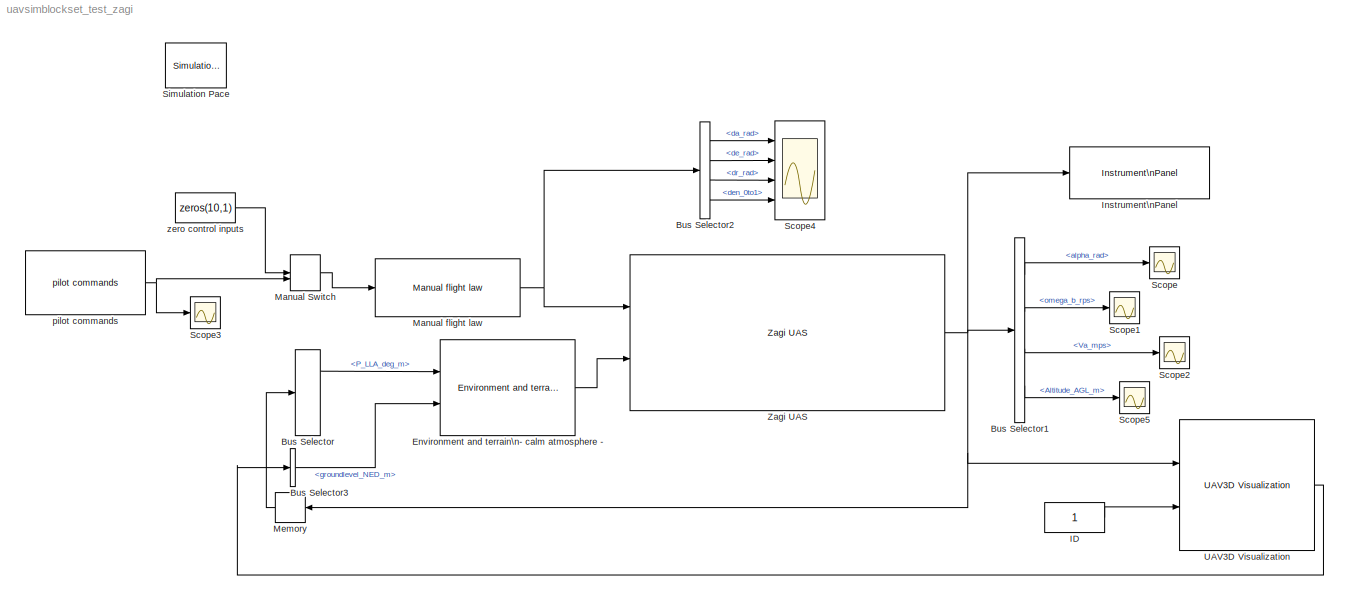
MODEL uavsimblockset_test_zagi
KIND model
BLOCK [BusSelector] Bus Selector
  OutputSignals = Kinematics.Position.P_LLA_deg_m,Kinematics.Attitude.DCM_be,Aero.Va_mps
  Ports = [1, 3]
  SID = 48
BLOCK [BusSelector] Bus Selector1
  OutputSignals = Aero.alpha_rad,Kinematics.RotationalVelocity.omega_b_rps,Aero.Va_mps,Kinematics.Position.Altitude_AGL_m
  Ports = [1, 4]
  SID = 57
BLOCK [BusSelector] Bus Selector2
  OutputSignals = da_rad,de_rad,dr_rad,den_0to1
  Ports = [1, 4]
  SID = 65
BLOCK [BusSelector] Bus Selector3
  OutputSignals = groundlevel_NED_m
  Ports = [1, 1]
  SID = 72
BLOCK [Reference] Environment and terrain\n- calm atmosphere -  REF=uavsimBlockset_Environment_calmAtmosphere/Environment and terrain\n- calm atmosphere -
  FunctionWithSeparateData = off
  GeneratePreprocessorConditionals = off
  Ports = [2, 1]
  SID = 74
  ShowPortLabels = FromPortIcon
  SourceBlock = uavsimBlockset_Environment_calmAtmosphere/Environment and terrain\n- calm atmosphere -
  SystemSampleTime = -1
BLOCK [Constant] ID
  SID = 32
BLOCK [Reference] Instrument\nPanel  REF=uavsimBlockset_InstrumentPanel/Instrument\nPanel
  Ports = [1]
  SID = 70
  SourceBlock = uavsimBlockset_InstrumentPanel/Instrument\nPanel
  SourceType = SubSystem
BLOCK [ManualSwitch] Manual Switch
  SID = 51
BLOCK [Reference] Manual flight law  REF=uavsimBlockset_ManualLaw/Manual flight law
  Ports = [1, 1]
  SID = 46
  SourceBlock = uavsimBlockset_ManualLaw/Manual flight law
  mask_scale_da = deg2rad(-15)
  mask_scale_de = deg2rad(30)
  mask_scale_den = 0
  mask_scale_df = deg2rad(0)
  mask_scale_dr = deg2rad(0)
  mask_utrim = aircraftLibraryData.zagi.u_trim
BLOCK [Memory] Memory
  SID = 56
BLOCK [Scope] Scope
  DataFormat = StructureWithTime
  Floating = off
  NumInputPorts = 1
  Ports = [1]
  SID = 58
  SampleTime = 0
  ShowLegends = off
  YMax = 0.20229
  YMin = 0.20206
BLOCK [Scope] Scope1
  DataFormat = StructureWithTime
  Floating = off
  NumInputPorts = 1
  Ports = [1]
  SID = 59
  SampleTime = 0
  SaveName = ScopeData1
  ShowLegends = off
BLOCK [Scope] Scope2
  DataFormat = StructureWithTime
  Floating = off
  NumInputPorts = 1
  Ports = [1]
  SID = 60
  SampleTime = 0
  SaveName = ScopeData2
  ShowLegends = off
  YMax = 16.25
  YMin = 11.5
BLOCK [Scope] Scope3
  DataFormat = StructureWithTime
  Floating = off
  NumInputPorts = 1
  Ports = [1]
  SID = 63
  SampleTime = 0
  SaveName = ScopeData3
  ShowLegends = off
BLOCK [Scope] Scope4
  DataFormat = StructureWithTime
  Floating = off
  NumInputPorts = 4
  Ports = [4]
  SID = 64
  SampleTime = 0
  SaveName = ScopeData4
  ShowLegends = off
  TimeRange = 25
  YMax = 1~1~1~0.525
  YMin = -1~-1~-1~0.475
BLOCK [Scope] Scope5
  DataFormat = StructureWithTime
  Floating = off
  NumInputPorts = 1
  Ports = [1]
  SID = 67
  SampleTime = 0
  SaveName = ScopeData5
  ShowLegends = off
  TimeRange = 10
  YMax = -80467
  YMin = -80486
BLOCK [Reference] Simulation Pace  REF=aerolibanimutils/Simulation Pace
  AttributesFormatString = %<SimulationPace> sec/sec
  OutputPaceError = off
  Ports = []
  SID = 41
  SampleTime = 1/30
  SimulationPace = 1
  SleepMode = MATLAB Thread
  SourceBlock = aerolibanimutils/Simulation Pace
  SourceType = Simulation Pace
BLOCK [Reference] UAV3D Visualization  REF=uavsimBlockset_UAV3DVisualization/UAV3D Visualization
  Ports = [2, 1]
  SID = 66
  SourceBlock = uavsimBlockset_UAV3DVisualization/UAV3D Visualization
  SourceType = SubSystem
BLOCK [Reference] Zagi UAS  REF=uavsimBlockset_ZagiUAS/Zagi UAS
  Ports = [2, 1]
  SID = 31
  SourceBlock = uavsimBlockset_ZagiUAS/Zagi UAS
  mask_zagi_p0_ECEF_lla = aircraftLibraryData.zagi.p0_ECEF_lla_radradm
  mask_zagi_phithetapsi0 = aircraftLibraryData.zagi.phithetapsi0
  mask_zagi_pqr0 = aircraftLibraryData.zagi.omega0
  mask_zagi_uvw0 = aircraftLibraryData.zagi.uvw0
BLOCK [Reference] pilot commands  REF=uavsimblockset_PilotCommands/pilot commands
  Commented = on
  Ports = [0, 1]
  SID = 44
  SourceBlock = uavsimblockset_PilotCommands/pilot commands
  SourceType = SubSystem
BLOCK [Constant] zero control inputs
  SID = 50
  Value = zeros(10,1)
LINE Bus Selector1:1 -> Scope:1
LINE Bus Selector1:2 -> Scope1:1
LINE Bus Selector1:3 -> Scope2:1
LINE Bus Selector1:4 -> Scope5:1
LINE Bus Selector2:1 -> Scope4:1
LINE Bus Selector2:2 -> Scope4:2
LINE Bus Selector2:3 -> Scope4:3
LINE Bus Selector2:4 -> Scope4:4
LINE Bus Selector3:1 -> Environment and terrain\n- calm atmosphere -:2
LINE Bus Selector:1 -> Environment and terrain\n- calm atmosphere -:1
LINE Environment and terrain\n- calm atmosphere -:1 -> Zagi UAS:2
LINE ID:1 -> UAV3D Visualization:2
LINE Manual Switch:1 -> Manual flight law:1
NET Manual flight law:1 -> Bus Selector2:1, Zagi UAS:1
LINE Memory:1 -> Bus Selector:1
LINE UAV3D Visualization:1 -> Bus Selector3:1
NET Zagi UAS:1 -> Bus Selector1:1, Instrument\nPanel:1, Memory:1, UAV3D Visualization:1
NET pilot commands:1 -> Manual Switch:2, Scope3:1
LINE zero control inputs:1 -> Manual Switch:1
note: NET lines group one-source signal fan-out (src -> all destinations, sorted); 1:1 wires keep LINE
